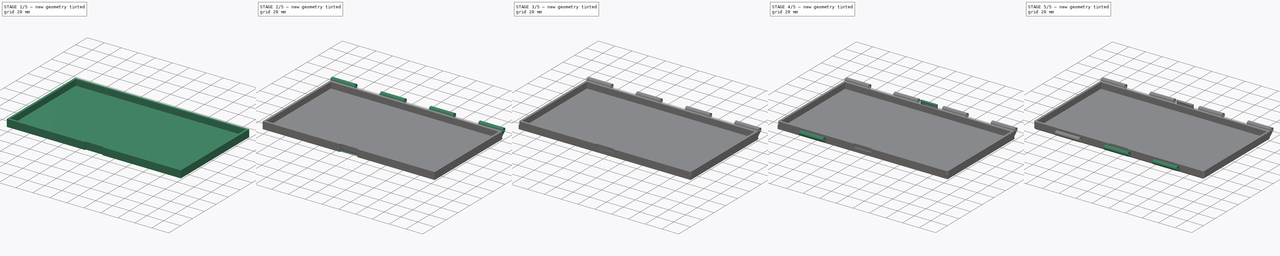
[diagram: build sequence overview — one tinted view per stage of 5, left to right]
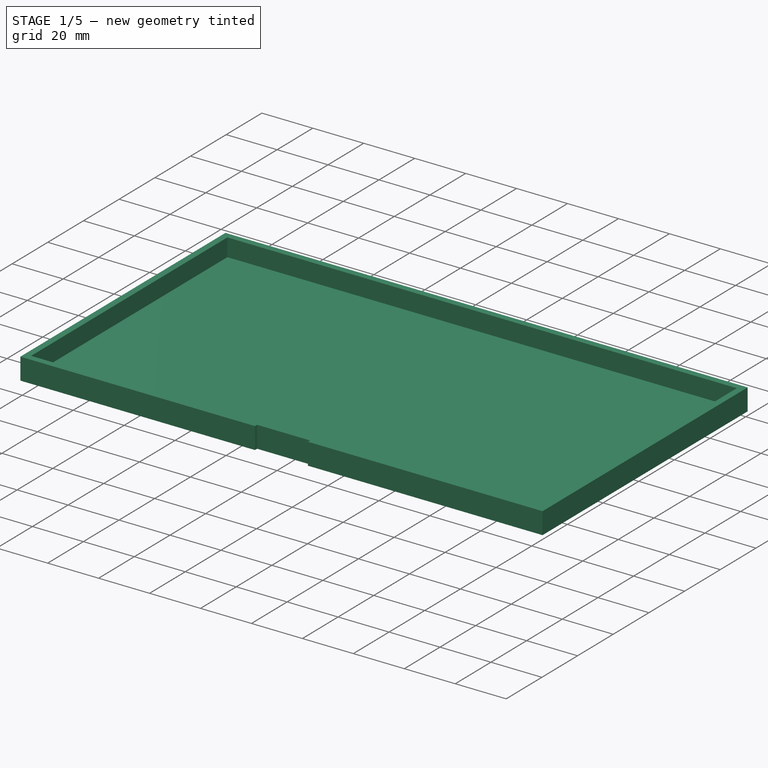
[diagram: stage 1 of 5 — iso view after this stage's code; geometry added in this stage tinted green]
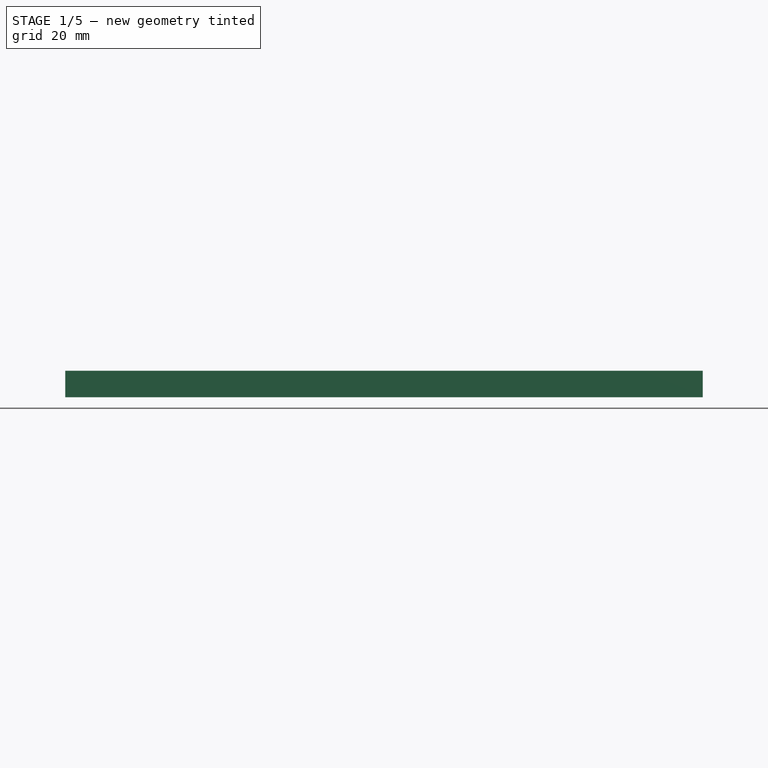
[diagram: stage 1 of 5 — front view after this stage's code; geometry added in this stage tinted green]
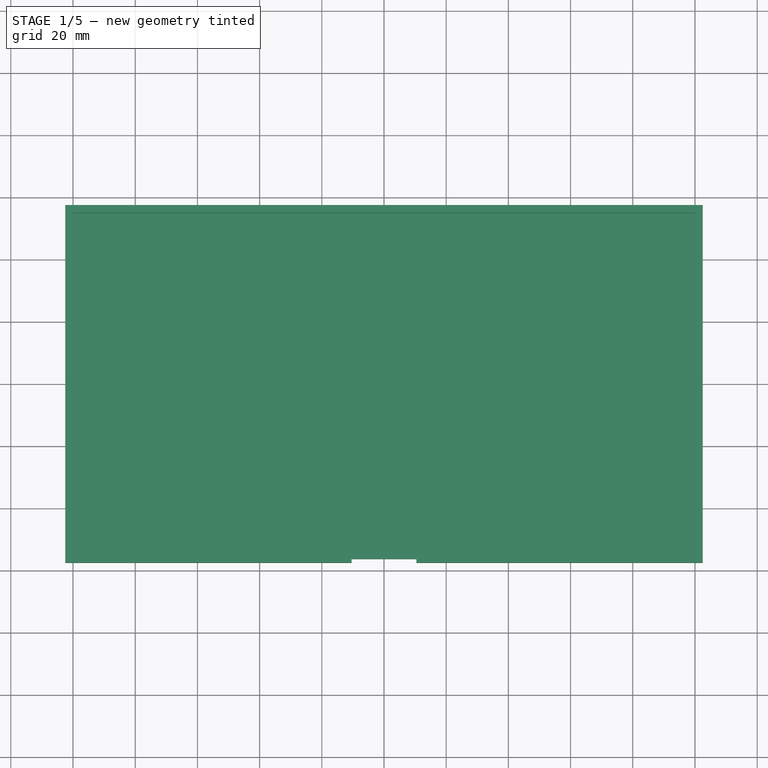
[diagram: stage 1 of 5 — top view after this stage's code; geometry added in this stage tinted green]
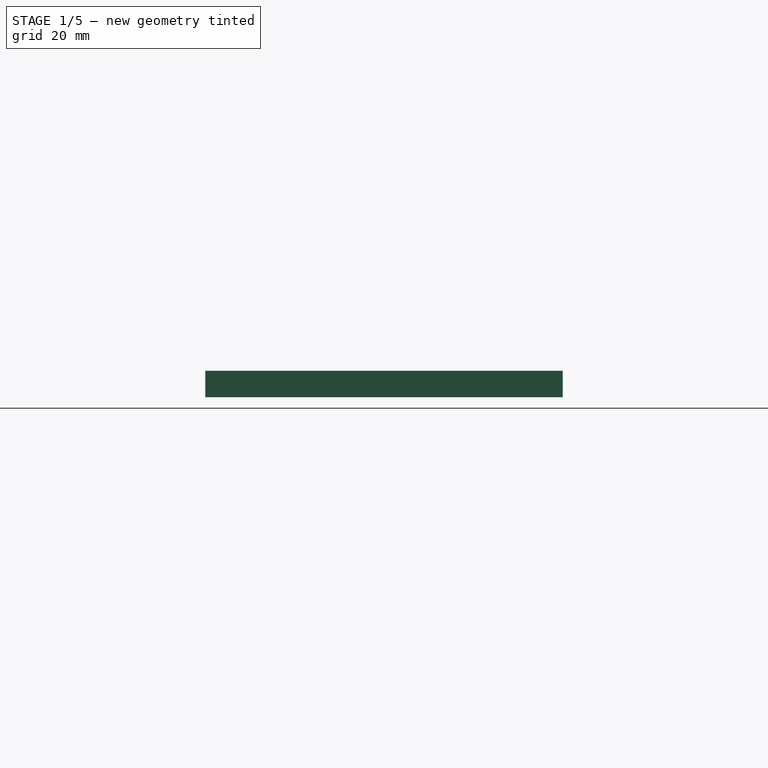
[diagram: stage 1 of 5 — right view after this stage's code; geometry added in this stage tinted green]
FCSTD DOCUMENT  (FreeCAD 0.19R24054 (Git))
Label: parametric box
License: All rights reserved
LicenseURL: http://en.wikipedia.org/wiki/All_rights_reserved
objects: Sketcher::SketchObject×10, PartDesign::Pad×8, PartDesign::CoordinateSystem×4, App::DocumentObjectGroup×2, App::Link×2, PartDesign::Pocket×2, PartDesign::LinearPattern×2, PartDesign::Line×2, PartDesign::Fillet×2, PartDesign::Chamfer×2, PartDesign::Body×2, Spreadsheet::Sheet×1, App::FeaturePython×1, App::Part×1
note: 48 computed .brp shape members not serialized (recipe doc carries the construction recipe); baked Part::Feature solids carry a one-line shape summary decoded from their .brp

FEATURE [Spreadsheet::Sheet] Spreadsheet  label="dim"
  cells = A1=width; B1(width)=200; C1=200; D1=width_plus_walls; E1(width_plus_walls)==width + 2 * wall; A2=depth; B2(depth)=110; C2=110; D2=depth_plus_walls; E2(depth_plus_walls)==depth + 2 * wall; A3=height_box; B3(height_box)=7; A4=height_cover; B4(height_cover)=3; A5=height_slack; B5(height_slack)=0.3; A6=bottom; B6(bottom)=1.5; A7=top; B7(top)=1.5; A8=wall; B8(wall)=2.5; A9=hinge_d; B9(hinge_d)=5; A10=hinge_hole; B10(hinge_hole)=2.5; D10=hinge_width; E10(hinge_width)==(width_plus_walls + hinge_spacing) / num_hinges - hinge_spacing; A11=hinge_spacing; B11(hinge_spacing)=0.5; D11=hinge_dist_bottom; E11(hinge_dist_bottom)==width_plus_walls - hinge_width; A12=num_hinges; B12(num_hinges)=7; C12=must be odd; D12=num_hinges_bottom; E12(num_hinges_bottom)==(num_hinges + 1) / 2; A13=lock_width; B13(lock_width)=20; D13=num_hinges_cover; E13(num_hinges_cover)==num_hinges - num_hinges_bottom; A14=lock_thickness; B14(lock_thickness)=1; D14=hinge_dist_cover; E14(hinge_dist_cover)==2 * (num_hinges_cover - 1) * (hinge_width + hinge_spacing); A15=lock_tab; B15(lock_tab)=1; A16=lock_width_slack; B16(lock_width_slack)=0.4; A17=lock_thick_slack; B17(lock_thick_slack)=0.2; A18=vert_fillet; B18(vert_fillet)=2; A19=hor_chamfer; B19(hor_chamfer)=1
FEATURE [Sketcher::SketchObject] Sketch
  FullyConstrained = true
  MapMode = 5
  Support = -> [XY_Plane]
  expr: Constraints[10] = <<dim>>.depth_plus_walls
  expr: Constraints[9] = <<dim>>.width_plus_walls
  sketch-geometry (4):
    g0: LineSegment StartX=-102.5 StartY=57.5 StartZ=0 EndX=102.5 EndY=57.5 EndZ=0
    g1: LineSegment StartX=102.5 StartY=57.5 StartZ=0 EndX=102.5 EndY=-57.5 EndZ=0
    g2: LineSegment StartX=102.5 StartY=-57.5 StartZ=0 EndX=-102.5 EndY=-57.5 EndZ=0
    g3: LineSegment StartX=-102.5 StartY=-57.5 StartZ=0 EndX=-102.5 EndY=57.5 EndZ=0
  constraints (11):
    c: Coincident(g0,g1)
    c: Coincident(g1,g2)
    c: Coincident(g2,g3)
    c: Coincident(g3,g0)
    c: Horizontal(g0)
    c: Horizontal(g2)
    c: Vertical(g1)
    c: Vertical(g3)
    c: Symmetric(g1,g0,g-1)
    c: DistanceX(g0,g0) = 205
    c: DistanceY(g1,g1) = 115
FEATURE [PartDesign::Pad] Pad
  Direction = (1,1,1)
  Length = 1.5
  Length2 = 100
  Profile = -> Sketch
  Refine = true
  Reversed = true
  Type = 0
  expr: Length = <<dim>>.bottom
FEATURE [Sketcher::SketchObject] Sketch001
  FullyConstrained = true
  MapMode = 5
  Support = -> [XY_Plane]
  expr: Constraints[21] = <<dim>>.wall
  expr: Constraints[20] = <<dim>>.wall
  expr: Constraints[10] = <<dim>>.depth_plus_walls
  expr: Constraints[9] = <<dim>>.width_plus_walls
  sketch-geometry (8):
    g0: LineSegment StartX=-102.5 StartY=57.5 StartZ=0 EndX=102.5 EndY=57.5 EndZ=0
    g1: LineSegment StartX=102.5 StartY=57.5 StartZ=0 EndX=102.5 EndY=-57.5 EndZ=0
    g2: LineSegment StartX=102.5 StartY=-57.5 StartZ=0 EndX=-102.5 EndY=-57.5 EndZ=0
    g3: LineSegment StartX=-102.5 StartY=-57.5 StartZ=0 EndX=-102.5 EndY=57.5 EndZ=0
    g4: LineSegment StartX=-100 StartY=55 StartZ=0 EndX=100 EndY=55 EndZ=0
    g5: LineSegment StartX=100 StartY=55 StartZ=0 EndX=100 EndY=-55 EndZ=0
    g6: LineSegment StartX=100 StartY=-55 StartZ=0 EndX=-100 EndY=-55 EndZ=0
    g7: LineSegment StartX=-100 StartY=-55 StartZ=0 EndX=-100 EndY=55 EndZ=0
  constraints (22):
    c: Coincident(g0,g1)
    c: Coincident(g1,g2)
    c: Coincident(g2,g3)
    c: Coincident(g3,g0)
    c: Horizontal(g0)
    c: Horizontal(g2)
    c: Vertical(g1)
    c: Vertical(g3)
    c: Symmetric(g1,g0,g-1)
    c: DistanceX(g0,g0) = 205
    c: DistanceY(g1,g1) = 115
    c: Coincident(g4,g5)
    c: Coincident(g5,g6)
    c: Coincident(g6,g7)
    c: Coincident(g7,g4)
    c: Horizontal(g4)
    c: Horizontal(g6)
    c: Vertical(g5)
    c: Vertical(g7)
    c: Symmetric(g5,g4,g-1)
    c: DistanceX(g4,g0) = 2.5
    c: DistanceY(g4,g0) = 2.5
FEATURE [PartDesign::Pad] Pad001
  BaseFeature = -> Pad
  Direction = (1,1,1)
  Length = 7
  Length2 = 100
  Profile = -> Sketch001
  Refine = true
  Type = 0
  expr: Length = <<dim>>.height_box
FEATURE [PartDesign::CoordinateSystem] LCS_Origin
  AttacherType = Attacher::AttachEngine3D
  MapMode = 2
  Support = -> [X_Axis002]
FEATURE [App::DocumentObjectGroup] Constraints
FEATURE [App::FeaturePython] Variables  # WARN: FeaturePython — macro-defined, semantics opaque (R4)
FEATURE [App::Link] bottom  label="bottom001"
  AssemblyType = Asm4EE
  AttachedBy = #LCS_1
  AttachedTo = Parent Assembly#LCS_Origin
  LinkedObject = -> Body
  expr: Placement = LCS_Origin.Placement * AttachmentOffset * LCS_1.Placement ^ -1
FEATURE [PartDesign::CoordinateSystem] LCS_1
  AttacherType = Attacher::AttachEngine3D
FEATURE [PartDesign::CoordinateSystem] LCS_2
  AttacherType = Attacher::AttachEngine3D
  MapMode = 7
  Placement = pos=(102.5,57.5,7) rot=(0,0.707107,0.707107;3.14159rad)
  Support = -> [Pad001]
FEATURE [PartDesign::CoordinateSystem] LCS_3
  AttacherType = Attacher::AttachEngine3D
  MapMode = 7
  Placement = pos=(102.5,-57.5,3) rot=(0,0.707107,0.707107;3.14159rad)
  Support = -> [Pad002]
FEATURE [App::Link] cover  label="cover001"
  AssemblyType = Asm4EE
  AttachedBy = #HoleAxis_2
  AttachedTo = bottom#HoleAxis_1
  AttachmentOffset = pos=(0,0,0) rot=(0,0,1;3.14159rad)
  LinkPlacement = pos=(-1.42e-14,-5.47416e-05,10.599) rot=(1,0,0;3.14161rad)
  LinkedObject = -> Body001
  Placement = pos=(-1.42e-14,-5.47416e-05,10.599) rot=(1,0,0;3.14161rad)
  expr: Placement = bottom.Placement * HoleAxis_1.Placement * AttachmentOffset * HoleAxis_2.Placement ^ -1
FEATURE [App::Part] Model
  Configuration = 0
  Group = -> [LCS_Origin,Constraints,Variables,bottom,cover]
  Origin = -> Origin002
  Type = Assembly4 Model
FEATURE [Sketcher::SketchObject] Sketch004
  FullyConstrained = true
  MapMode = 5
  Support = -> [XY_Plane]
  expr: Constraints[10] = <<dim>>.lock_thickness + <<dim>>.lock_thick_slack
  expr: Constraints[9] = <<dim>>.lock_width + 2 * <<dim>>.lock_width_slack
  expr: Constraints[7] = -<<dim>>.depth_plus_walls / 2
  sketch-geometry (4):
    g0: LineSegment StartX=-10.4 StartY=-57.5 StartZ=0 EndX=10.4 EndY=-57.5 EndZ=0
    g1: LineSegment StartX=10.4 StartY=-57.5 StartZ=0 EndX=10.4 EndY=-56.3 EndZ=0
    g2: LineSegment StartX=10.4 StartY=-56.3 StartZ=0 EndX=-10.4 EndY=-56.3 EndZ=0
    g3: LineSegment StartX=-10.4 StartY=-56.3 StartZ=0 EndX=-10.4 EndY=-57.5 EndZ=0
  constraints (11):
    c: Coincident(g0,g1)
    c: Coincident(g1,g2)
    c: Coincident(g2,g3)
    c: Coincident(g3,g0)
    c: Horizontal(g2)
    c: Vertical(g1)
    c: Vertical(g3)
    c: DistanceY(g0) = -57.5
    c: Symmetric(g0,g0,g-2)
    c: DistanceX(g0,g0) = 20.8
    c: DistanceY(g1,g1) = 1.2
FEATURE [PartDesign::Pocket] Pocket
  BaseFeature = -> Pad001
  Length = 5
  Length2 = 100
  Midplane = true
  Profile = -> Sketch004
  Refine = true
  Type = 1
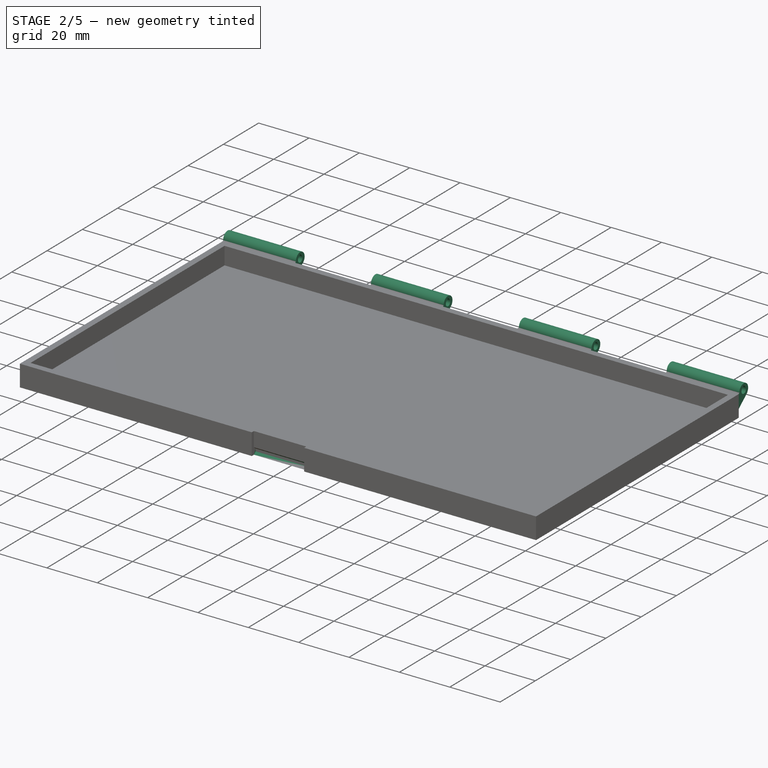
[diagram: stage 2 of 5 — iso view after this stage's code; geometry added in this stage tinted green]
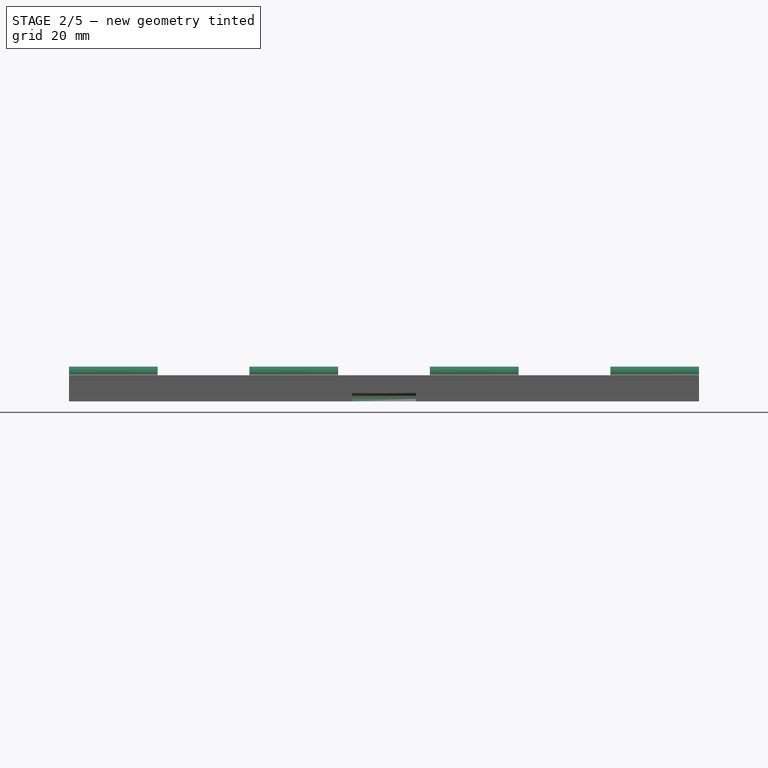
[diagram: stage 2 of 5 — front view after this stage's code; geometry added in this stage tinted green]
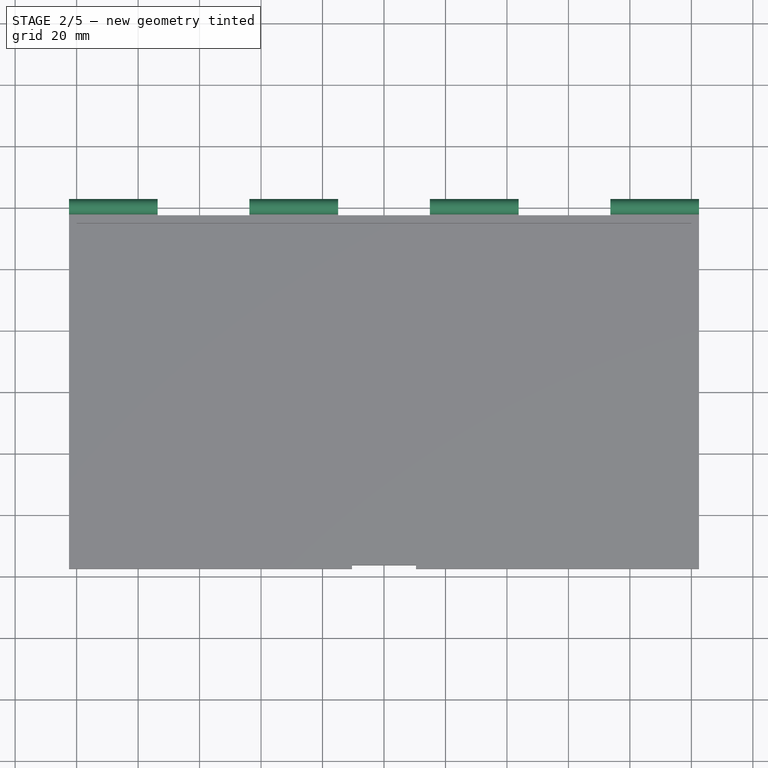
[diagram: stage 2 of 5 — top view after this stage's code; geometry added in this stage tinted green]
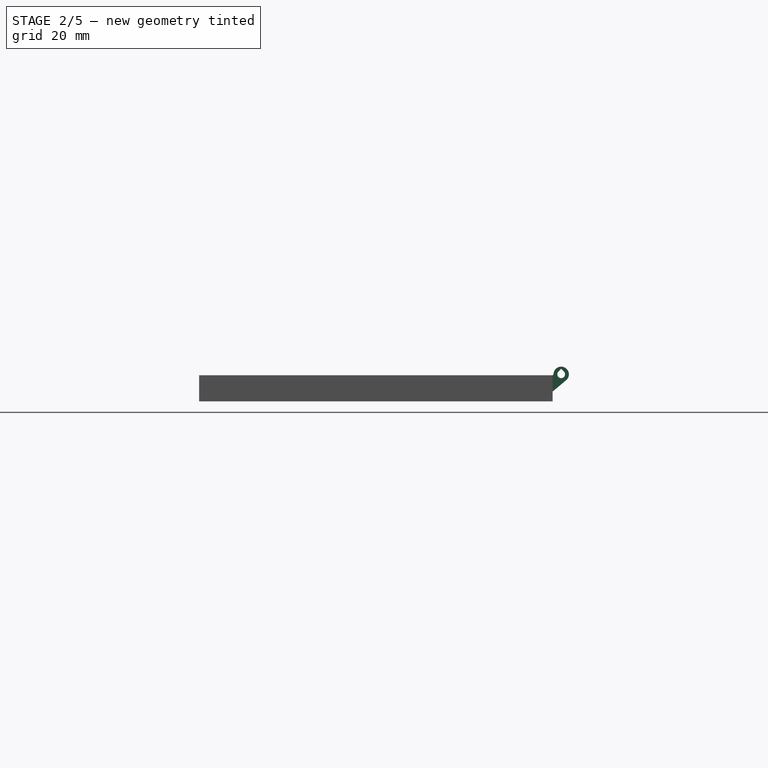
[diagram: stage 2 of 5 — right view after this stage's code; geometry added in this stage tinted green]
FEATURE [PartDesign::Body] Body001  label="cover"
  Group = -> [Sketch002,Pad003,Sketch003,Pad002,LCS_3,Sketch006,Pad005,Sketch007,Pad006,Sketch009,Pad008,LinearPattern001,HoleAxis_2,Fillet001,Chamfer001]
  Origin = -> Origin001
  Placement = pos=(0,133,0) rot=(0,0,1;0rad)
  Tip = -> Chamfer001
FEATURE [PartDesign::Pocket] Pocket001
  BaseFeature = -> Pocket
  Length = 20.8
  Length2 = 100
  Midplane = true
  Profile = -> Sketch005
  Refine = true
  Type = 0
  expr: Length = <<dim>>.lock_width + 2 * <<dim>>.lock_width_slack
FEATURE [PartDesign::Pad] Pad007
  BaseFeature = -> Pocket001
  Direction = (1,1,1)
  Length = 28.8571
  Length2 = 100
  Profile = -> Sketch008
  Refine = true
  Type = 0
  expr: Length = <<dim>>.hinge_width
FEATURE [PartDesign::LinearPattern] LinearPattern
  BaseFeature = -> Pad007
  Direction = -> X_Axis
  Length = 176.143
  Occurrences = 4
  Originals = -> [Pad007]
  Refine = true
  expr: Occurrences = <<dim>>.num_hinges_bottom
  expr: Length = Spreadsheet.hinge_dist_bottom
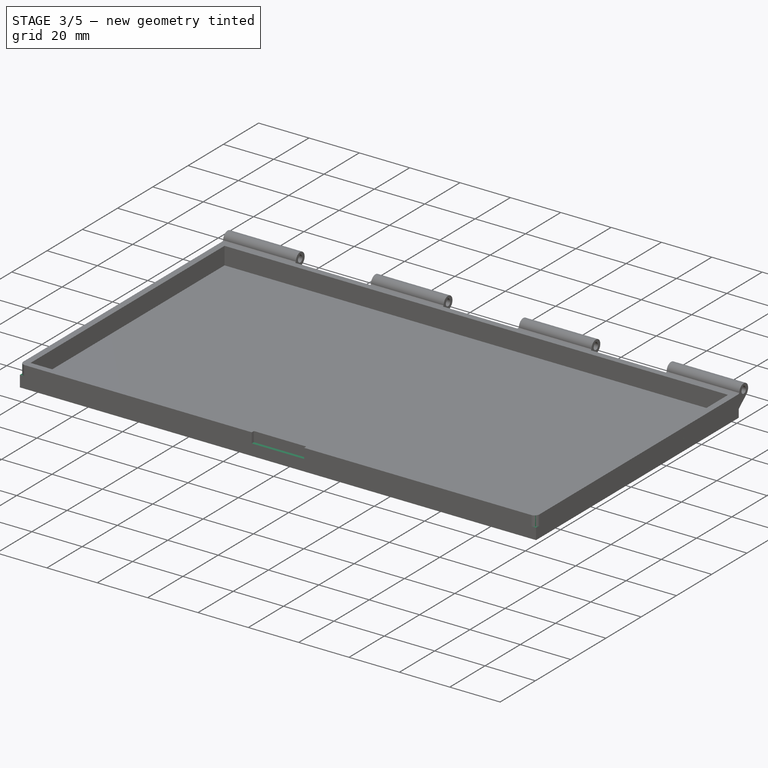
[diagram: stage 3 of 5 — iso view after this stage's code; geometry added in this stage tinted green]
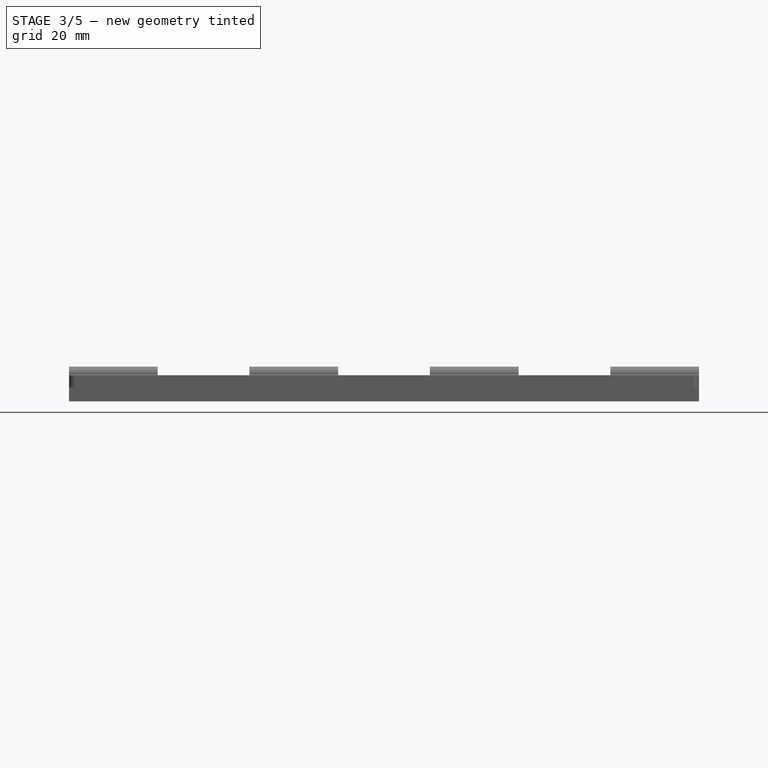
[diagram: stage 3 of 5 — front view after this stage's code; geometry added in this stage tinted green]
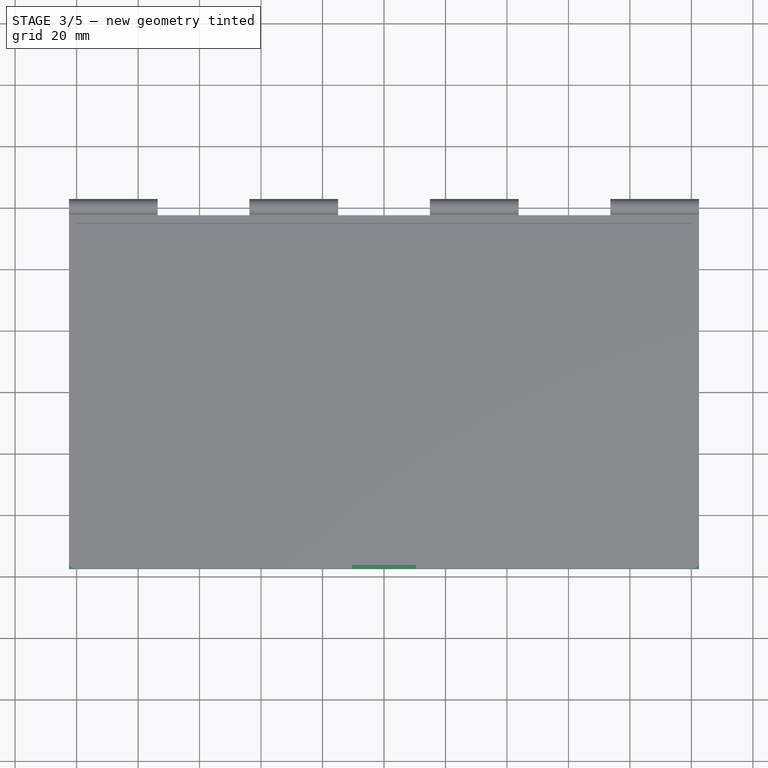
[diagram: stage 3 of 5 — top view after this stage's code; geometry added in this stage tinted green]
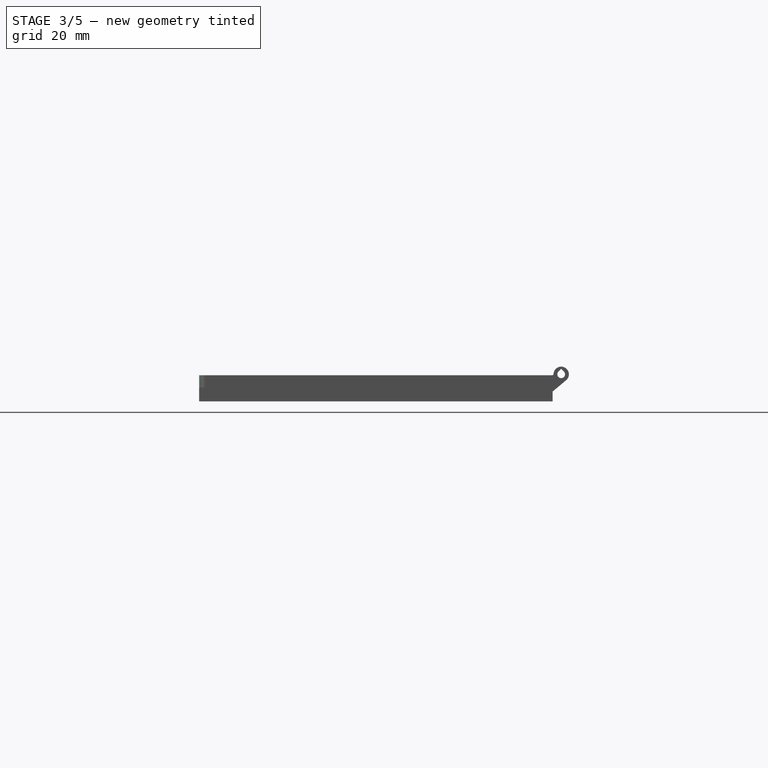
[diagram: stage 3 of 5 — right view after this stage's code; geometry added in this stage tinted green]
FEATURE [Sketcher::SketchObject] Sketch002
  FullyConstrained = true
  MapMode = 5
  Support = -> [XY_Plane001]
  expr: Constraints[9] = <<dim>>.width_plus_walls
  expr: Constraints[10] = <<dim>>.depth_plus_walls
  sketch-geometry (4):
    g0: LineSegment StartX=-102.5 StartY=57.5 StartZ=0 EndX=102.5 EndY=57.5 EndZ=0
    g1: LineSegment StartX=102.5 StartY=57.5 StartZ=0 EndX=102.5 EndY=-57.5 EndZ=0
    g2: LineSegment StartX=102.5 StartY=-57.5 StartZ=0 EndX=-102.5 EndY=-57.5 EndZ=0
    g3: LineSegment StartX=-102.5 StartY=-57.5 StartZ=0 EndX=-102.5 EndY=57.5 EndZ=0
  constraints (11):
    c: Coincident(g0,g1)
    c: Coincident(g1,g2)
    c: Coincident(g2,g3)
    c: Coincident(g3,g0)
    c: Horizontal(g0)
    c: Horizontal(g2)
    c: Vertical(g1)
    c: Vertical(g3)
    c: Symmetric(g1,g0,g-1)
    c: DistanceX(g0,g0) = 205
    c: DistanceY(g1,g1) = 115
FEATURE [Sketcher::SketchObject] Sketch003
  FullyConstrained = true
  MapMode = 5
  Support = -> [XY_Plane001]
  expr: Constraints[9] = <<dim>>.width_plus_walls
  expr: Constraints[10] = <<dim>>.depth_plus_walls
  expr: Constraints[20] = <<dim>>.wall
  expr: Constraints[21] = <<dim>>.wall
  sketch-geometry (8):
    g0: LineSegment StartX=-102.5 StartY=57.5 StartZ=0 EndX=102.5 EndY=57.5 EndZ=0
    g1: LineSegment StartX=102.5 StartY=57.5 StartZ=0 EndX=102.5 EndY=-57.5 EndZ=0
    g2: LineSegment StartX=102.5 StartY=-57.5 StartZ=0 EndX=-102.5 EndY=-57.5 EndZ=0
    g3: LineSegment StartX=-102.5 StartY=-57.5 StartZ=0 EndX=-102.5 EndY=57.5 EndZ=0
    g4: LineSegment StartX=-100 StartY=55 StartZ=0 EndX=100 EndY=55 EndZ=0
    g5: LineSegment StartX=100 StartY=55 StartZ=0 EndX=100 EndY=-55 EndZ=0
    g6: LineSegment StartX=100 StartY=-55 StartZ=0 EndX=-100 EndY=-55 EndZ=0
    g7: LineSegment StartX=-100 StartY=-55 StartZ=0 EndX=-100 EndY=55 EndZ=0
  constraints (22):
    c: Coincident(g0,g1)
    c: Coincident(g1,g2)
    c: Coincident(g2,g3)
    c: Coincident(g3,g0)
    c: Horizontal(g0)
    c: Horizontal(g2)
    c: Vertical(g1)
    c: Vertical(g3)
    c: Symmetric(g1,g0,g-1)
    c: DistanceX(g0,g0) = 205
    c: DistanceY(g1,g1) = 115
    c: Coincident(g4,g5)
    c: Coincident(g5,g6)
    c: Coincident(g6,g7)
    c: Coincident(g7,g4)
    c: Horizontal(g4)
    c: Horizontal(g6)
    c: Vertical(g5)
    c: Vertical(g7)
    c: Symmetric(g5,g4,g-1)
    c: DistanceX(g4,g0) = 2.5
    c: DistanceY(g4,g0) = 2.5
FEATURE [PartDesign::Pad] Pad003
  Direction = (1,1,1)
  Length = 1.5
  Length2 = 100
  Profile = -> Sketch002
  Refine = true
  Reversed = true
  Type = 0
  expr: Length = <<dim>>.bottom
FEATURE [PartDesign::Pad] Pad002
  BaseFeature = -> Pad003
  Direction = (1,1,1)
  Length = 3
  Length2 = 100
  Profile = -> Sketch003
  Refine = true
  Type = 0
  expr: Length = <<dim>>.height_cover
FEATURE [PartDesign::Line] HoleAxis_1
  AttacherType = Attacher::AttachEngineLine
  AttachmentOffset = pos=(0,0,0.5) rot=(0,0,1;0rad)
  Length = 2.82656
  MapMode = 19
  Placement = pos=(-73.1429,60.3,7.3) rot=(-0.678598,0.281087,-0.678598;2.59356rad)
  ResizeMode = 1
  Support = -> [Pad007]
  expr: .AttachmentOffset.Base.z = <<dim>>.hinge_spacing
FEATURE [PartDesign::Fillet] Fillet
  Base = -> LinearPattern [Edge43,Edge47,Edge23,Edge19]
  BaseFeature = -> LinearPattern
  Radius = 2
  Refine = true
  SupportTransform = false
  expr: Radius = <<dim>>.vert_fillet
FEATURE [PartDesign::Chamfer] Chamfer
  Angle = 45
  Base = -> Fillet [Edge68]
  BaseFeature = -> Fillet
  ChamferType = 0
  FlipDirection = false
  Size = 1
  Size2 = 1
  SupportTransform = false
  expr: Size = <<dim>>.hor_chamfer
FEATURE [PartDesign::Body] Body  label="bottom"
  Group = -> [Sketch,Pad,Sketch001,Pad001,LCS_1,LCS_2,Sketch004,Pocket,Sketch005,Sketch008,Pocket001,Pad007,LinearPattern,HoleAxis_1,Fillet,Chamfer]
  Origin = -> Origin
  Tip = -> Chamfer
FEATURE [App::DocumentObjectGroup] Parts
  Group = -> [Body,Body001]
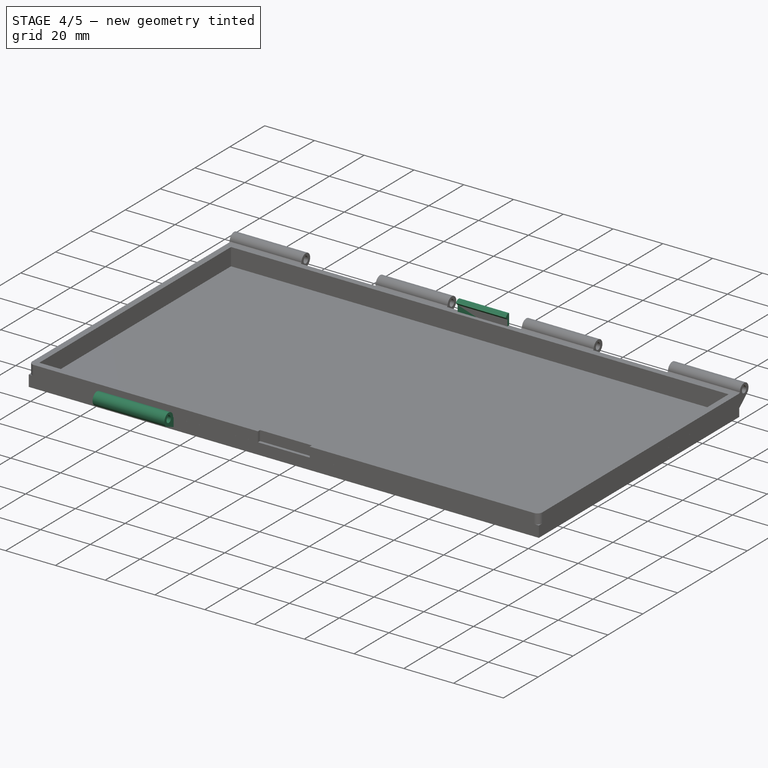
[diagram: stage 4 of 5 — iso view after this stage's code; geometry added in this stage tinted green]
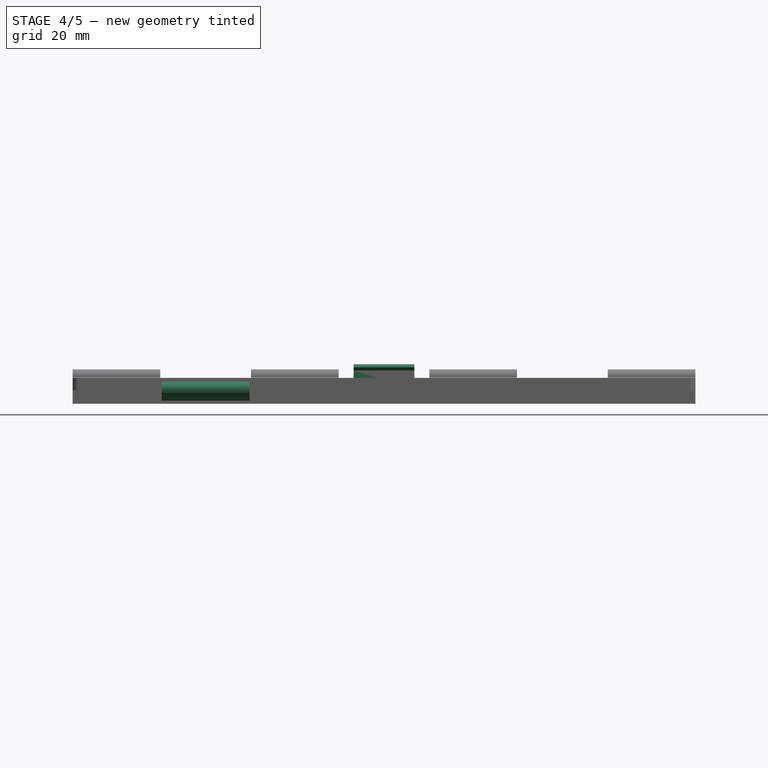
[diagram: stage 4 of 5 — front view after this stage's code; geometry added in this stage tinted green]
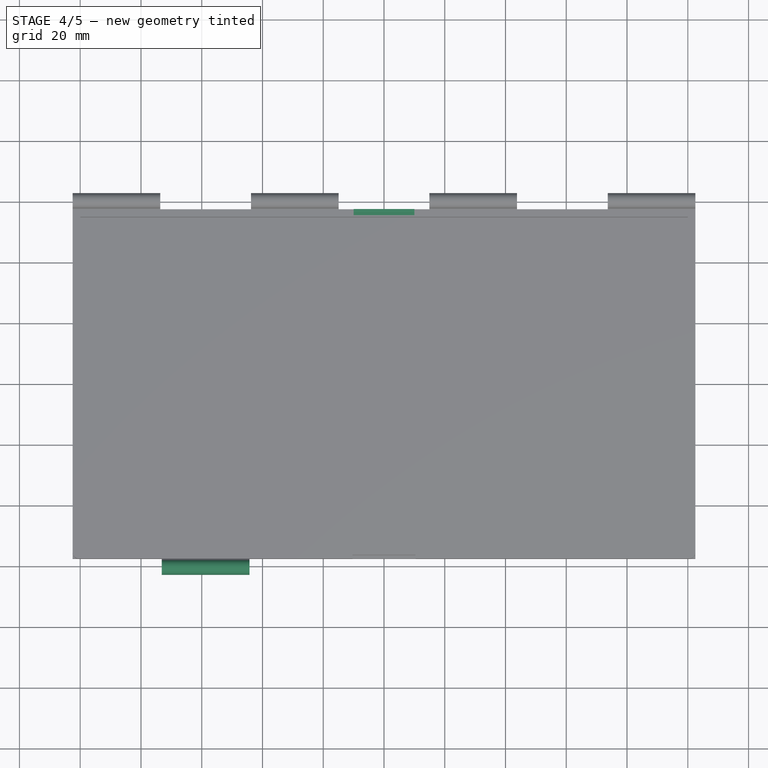
[diagram: stage 4 of 5 — top view after this stage's code; geometry added in this stage tinted green]
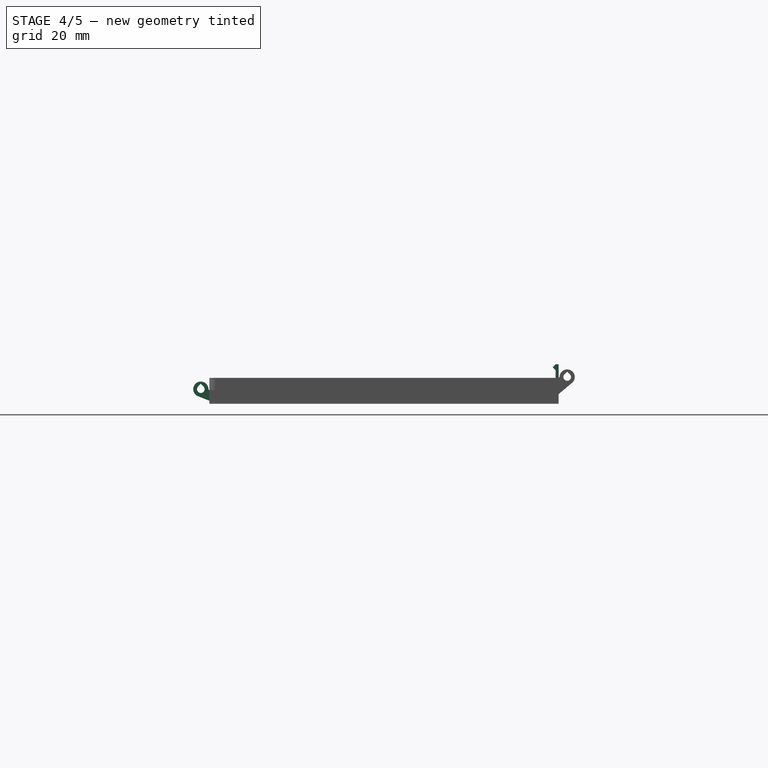
[diagram: stage 4 of 5 — right view after this stage's code; geometry added in this stage tinted green]
FEATURE [Sketcher::SketchObject] Sketch005
  FullyConstrained = true
  MapMode = 5
  Placement = pos=(0,0,0) rot=(0.57735,0.57735,0.57735;2.0944rad)
  Support = -> [YZ_Plane]
  expr: Constraints[6] = -<<dim>>.depth_plus_walls / 2 + <<dim>>.lock_thickness + <<dim>>.lock_thick_slack
  expr: Constraints[8] = <<dim>>.lock_tab
  expr: Constraints[10] = <<dim>>.lock_tab
  expr: Constraints[11] = -<<dim>>.bottom
  sketch-geometry (4):
    g0: LineSegment StartX=-56.3 StartY=-1.5 StartZ=0 EndX=-55.3 EndY=-0.6609 EndZ=0
    g1: LineSegment StartX=-55.3 StartY=-0.6609 StartZ=0 EndX=-55.3 EndY=0.3391 EndZ=0
    g2: LineSegment StartX=-55.3 StartY=0.3391 StartZ=0 EndX=-56.3 EndY=1.1782 EndZ=0
    g3: LineSegment StartX=-56.3 StartY=1.1782 StartZ=0 EndX=-56.3 EndY=-1.5 EndZ=0
  constraints (12):
    c: Coincident(g1,g0)
    c: Vertical(g1)
    c: Coincident(g2,g1)
    c: Coincident(g3,g2)
    c: Vertical(g3)
    c: Coincident(g3,g0)
    c: DistanceX(g0) = -56.3
    c: Angle(g0) = 0.698132
    c: DistanceY(g1,g1) = 1
    c: Angle(g2) = 2.44346
    c: DistanceX(g0,g0) = 1
    c: DistanceY(g0) = -1.5
FEATURE [Sketcher::SketchObject] Sketch006
  AttachmentOffset = pos=(0,0,3) rot=(0,0,1;0rad)
  FullyConstrained = true
  MapMode = 5
  Placement = pos=(0,0,3) rot=(0,0,1;0rad)
  Support = -> [XY_Plane001]
  expr: Constraints[10] = <<dim>>.lock_thickness
  expr: Constraints[9] = <<dim>>.depth_plus_walls / 2
  expr: Constraints[8] = <<dim>>.lock_width
  expr: .AttachmentOffset.Base.z = <<dim>>.height_cover
  sketch-geometry (4):
    g0: LineSegment StartX=-10 StartY=57.5 StartZ=0 EndX=10 EndY=57.5 EndZ=0
    g1: LineSegment StartX=10 StartY=57.5 StartZ=0 EndX=10 EndY=56.5 EndZ=0
    g2: LineSegment StartX=10 StartY=56.5 StartZ=0 EndX=-10 EndY=56.5 EndZ=0
    g3: LineSegment StartX=-10 StartY=56.5 StartZ=0 EndX=-10 EndY=57.5 EndZ=0
  constraints (11):
    c: Coincident(g0,g1)
    c: Coincident(g1,g2)
    c: Coincident(g2,g3)
    c: Coincident(g3,g0)
    c: Horizontal(g2)
    c: Vertical(g1)
    c: Vertical(g3)
    c: Symmetric(g0,g0,g-2)
    c: DistanceX(g0,g0) = 20
    c: DistanceY(g0) = 57.5
    c: DistanceY(g1,g1) = 1
FEATURE [PartDesign::Pad] Pad005
  BaseFeature = -> Pad002
  Direction = (1,1,1)
  Length = 8.5
  Length2 = 100
  Profile = -> Sketch006
  Refine = true
  Type = 0
  expr: Length = <<dim>>.height_box + <<dim>>.bottom
FEATURE [Sketcher::SketchObject] Sketch007
  FullyConstrained = true
  MapMode = 5
  Placement = pos=(0,0,0) rot=(0.57735,0.57735,0.57735;2.0944rad)
  Support = -> [YZ_Plane001]
  expr: Constraints[2] = <<dim>>.lock_tab
  expr: Constraints[1] = <<dim>>.depth_plus_walls / 2 - <<dim>>.lock_thickness
  expr: Constraints[0] = <<dim>>.height_cover + <<dim>>.height_box + <<dim>>.bottom
  sketch-geometry (3):
    g0: LineSegment StartX=56.5 StartY=11.5 StartZ=0 EndX=55.5 EndY=10.5 EndZ=0
    g1: LineSegment StartX=55.5 StartY=10.5 StartZ=0 EndX=56.5 EndY=9.5 EndZ=0
    g2: LineSegment StartX=56.5 StartY=9.5 StartZ=0 EndX=56.5 EndY=11.5 EndZ=0
  constraints (9):
    c: DistanceY(g0) = 11.5
    c: DistanceX(g0) = 56.5
    c: DistanceX(g0,g0) = 1
    c: Angle(g0) = -2.35619
    c: Coincident(g1,g0)
    c: Coincident(g2,g1)
    c: Coincident(g2,g0)
    c: Vertical(g2)
    c: Equal(g1,g0)
FEATURE [PartDesign::Pad] Pad006
  BaseFeature = -> Pad005
  Direction = (1,1,1)
  Length = 20
  Length2 = 100
  Midplane = true
  Profile = -> Sketch007
  Refine = true
  Type = 0
  expr: Length = <<dim>>.lock_width
FEATURE [Sketcher::SketchObject] Sketch008
  AttachmentOffset = pos=(0,0,-102.5) rot=(0,0,1;0rad)
  FullyConstrained = true
  MapMode = 5
  Placement = pos=(-102.5,2.28e-14,-2.28e-14) rot=(0.57735,0.57735,0.57735;2.0944rad)
  Support = -> [YZ_Plane]
  expr: Constraints[26] = <<dim>>.hinge_hole
  expr: Constraints[15] = <<dim>>.height_slack
  expr: Constraints[12] = <<dim>>.hinge_d
  expr: Constraints[11] = <<dim>>.height_slack
  expr: Constraints[10] = <<dim>>.height_box
  expr: Constraints[9] = <<dim>>.depth_plus_walls
  expr: .AttachmentOffset.Base.z = -<<dim>>.width_plus_walls / 2
  sketch-geometry (14):
    g0: Circle CenterX=60.3 CenterY=7.3 CenterZ=0 NormalX=0 NormalY=0 NormalZ=1 AngleXU=0 Radius=2.5
    g1: LineSegment StartX=-57.5 StartY=7 StartZ=0 EndX=57.5 EndY=7 EndZ=0
    g2: LineSegment StartX=57.5 StartY=7 StartZ=0 EndX=57.5 EndY=0 EndZ=0
    g3: LineSegment StartX=57.5 StartY=0 StartZ=0 EndX=-57.5 EndY=0 EndZ=0
    g4: LineSegment StartX=-57.5 StartY=0 StartZ=0 EndX=-57.5 EndY=7 EndZ=0
    g5: GeomPoint X=57.8 Y=7.3 Z=0
    g6: LineSegment StartX=57.5 StartY=7 StartZ=0 EndX=57.8 EndY=7.3 EndZ=0
    g7: LineSegment StartX=61.907 StartY=5.38489 StartZ=0 EndX=57.5 EndY=1.687 EndZ=0
    g8: ArcOfCircle CenterX=60.3 CenterY=7.3 CenterZ=0 NormalX=0 NormalY=0 NormalZ=1 AngleXU=0 Radius=2.5 StartAngle=5.41052 EndAngle=9.42478
    g9: LineSegment StartX=57.5 StartY=7 StartZ=0 EndX=57.5 EndY=1.687 EndZ=0
    g10: Circle CenterX=60.3 CenterY=7.3 CenterZ=0 NormalX=0 NormalY=0 NormalZ=1 AngleXU=0 Radius=1.25
    g11: LineSegment StartX=59.4161 StartY=8.18388 StartZ=0 EndX=60.3 EndY=9.06777 EndZ=0
    g12: LineSegment StartX=60.3 StartY=9.06777 StartZ=0 EndX=61.1839 EndY=8.18389 EndZ=0
    g13: ArcOfCircle CenterX=60.3 CenterY=7.3 CenterZ=0 NormalX=0 NormalY=0 NormalZ=1 AngleXU=0 Radius=1.25 StartAngle=2.3562 EndAngle=7.06859
  constraints (36):
    c: Coincident(g1,g2)
    c: Coincident(g2,g3)
    c: Coincident(g3,g4)
    c: Coincident(g4,g1)
    c: Horizontal(g3)
    c: Vertical(g2)
    c: Vertical(g4)
    c: PointOnObject(g2,g-1)
    c: Symmetric(g1,g1,g-2)
    c: DistanceX(g1,g1) = 115
    c: DistanceY(g2,g2) = 7
    c: DistanceY(g1,g0) = 0.3
    c: Diameter(g0) = 5
    c: PointOnObject(g5,g0)
    c: Horizontal(g5,g0)
    c: DistanceX(g1,g5) = 0.3
    c: Coincident(g6,g1)
    c: Coincident(g6,g5)
    c: PointOnObject(g7,g2)
    c: Angle(g7) = -2.44346
    c: Coincident(g8,g0)
    c: Coincident(g8,g6)
    c: Coincident(g9,g6)
    c: Coincident(g9,g7)
    c: Tangent(g8,g7) = 1.5708
    c: Coincident(g10,g8)
    c: Diameter(g10) = 2.5
    c: PointOnObject(g11,g10)
    c: Tangent(g11,g10)
    c: Coincident(g12,g11)
    c: Tangent(g12,g10)
    c: Vertical(g8,g11)
    c: Coincident(g13,g8)
    c: Coincident(g13,g11)
    c: Coincident(g13,g12)
    c: Perpendicular(g12,g11)
FEATURE [Sketcher::SketchObject] Sketch009
  AttachmentOffset = pos=(0,0,-73.1429) rot=(0,0,1;0rad)
  FullyConstrained = true
  MapMode = 5
  Placement = pos=(-73.1429,1.62e-14,-1.62e-14) rot=(0.57735,0.57735,0.57735;2.0944rad)
  Support = -> [YZ_Plane001]
  expr: Constraints[26] = <<dim>>.top - <<dim>>.hor_chamfer - 0.01
  expr: Constraints[16] = <<dim>>.height_slack
  expr: Constraints[15] = <<dim>>.hinge_hole
  expr: Constraints[10] = <<dim>>.height_cover
  expr: Constraints[17] = <<dim>>.height_slack
  expr: Constraints[9] = <<dim>>.depth_plus_walls
  expr: Constraints[13] = <<dim>>.hinge_d
  expr: .AttachmentOffset.Base.z = -<<dim>>.width_plus_walls / 2 + <<dim>>.hinge_width + <<dim>>.hinge_spacing
  sketch-geometry (14):
    g0: LineSegment StartX=57.5 StartY=0 StartZ=0 EndX=-57.5 EndY=0 EndZ=0
    g1: LineSegment StartX=-57.5 StartY=0 StartZ=0 EndX=-57.5 EndY=3 EndZ=0
    g2: LineSegment StartX=-57.5 StartY=3 StartZ=0 EndX=57.5 EndY=3 EndZ=0
    g3: LineSegment StartX=57.5 StartY=3 StartZ=0 EndX=57.5 EndY=0 EndZ=0
    g4: Circle CenterX=-60.3 CenterY=3.3 CenterZ=0 NormalX=0 NormalY=0 NormalZ=1 AngleXU=0 Radius=2.5
    g5: GeomPoint X=-57.8 Y=3.3 Z=0
    g6: Circle CenterX=-60.3 CenterY=3.3 CenterZ=0 NormalX=0 NormalY=0 NormalZ=1 AngleXU=0 Radius=1.25
    g7: LineSegment StartX=-57.5 StartY=3 StartZ=0 EndX=-57.8 EndY=3.3 EndZ=0
    g8: LineSegment StartX=-57.5 StartY=3 StartZ=0 EndX=-57.5 EndY=-0.49 EndZ=0
    g9: LineSegment StartX=-57.5 StartY=-0.49 StartZ=0 EndX=-61.2163 EndY=0.973974 EndZ=0
    g10: ArcOfCircle CenterX=-60.3 CenterY=3.3 CenterZ=0 NormalX=0 NormalY=0 NormalZ=1 AngleXU=0 Radius=2.5 StartAngle=0 EndAngle=4.33712
    g11: LineSegment StartX=-61.1839 StartY=4.18389 StartZ=0 EndX=-60.3 EndY=5.06777 EndZ=0
    g12: LineSegment StartX=-60.3 StartY=5.06777 StartZ=0 EndX=-59.4161 EndY=4.18387 EndZ=0
    g13: ArcOfCircle CenterX=-60.3 CenterY=3.3 CenterZ=0 NormalX=0 NormalY=0 NormalZ=1 AngleXU=0 Radius=1.25 StartAngle=2.35619 EndAngle=7.06857
  constraints (36):
    c: Coincident(g0,g1)
    c: Coincident(g1,g2)
    c: Coincident(g2,g3)
    c: Coincident(g3,g0)
    c: Horizontal(g0)
    c: Vertical(g1)
    c: Vertical(g3)
    c: PointOnObject(g0,g-1)
    c: Symmetric(g2,g1,g-2)
    c: DistanceX(g2,g2) = 115
    c: DistanceY(g1,g1) = 3
    c: PointOnObject(g5,g4)
    c: Horizontal(g5,g4)
    c: Diameter(g4) = 5
    c: Coincident(g6,g4)
    c: Diameter(g6) = 2.5
    c: DistanceX(g5,g1) = 0.3
    c: DistanceY(g1,g5) = 0.3
    c: Coincident(g7,g1)
    c: Coincident(g7,g5)
    c: Coincident(g8,g7)
    c: Vertical(g8)
    c: Coincident(g9,g8)
    c: Coincident(g10,g6)
    c: Coincident(g10,g7)
    c: Tangent(g10,g9) = 1.5708
    c: DistanceY(g8,g0) = 0.49
    c: PointOnObject(g11,g6)
    c: Tangent(g11,g6)
    c: Coincident(g12,g11)
    c: Tangent(g12,g6)
    c: Coincident(g13,g10)
    c: Coincident(g13,g11)
    c: Coincident(g13,g12)
    c: Perpendicular(g12,g11)
    c: Vertical(g11,g10)
FEATURE [PartDesign::Pad] Pad008
  BaseFeature = -> Pad006
  Direction = (1,1,1)
  Length = 28.8571
  Length2 = 100
  Profile = -> Sketch009
  Refine = true
  Type = 0
  expr: Length = <<dim>>.hinge_width
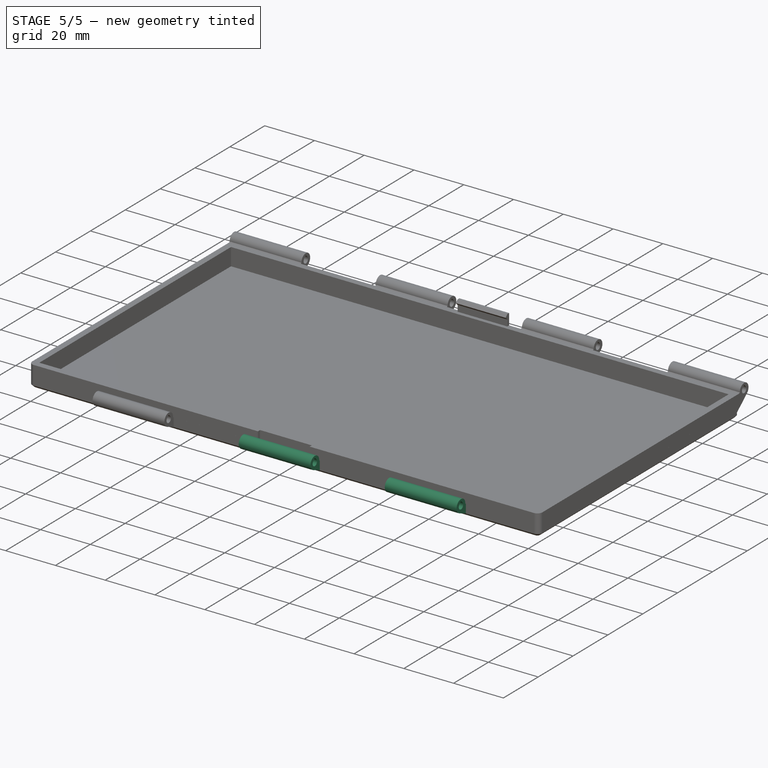
[diagram: stage 5 of 5 — iso view after this stage's code; geometry added in this stage tinted green]
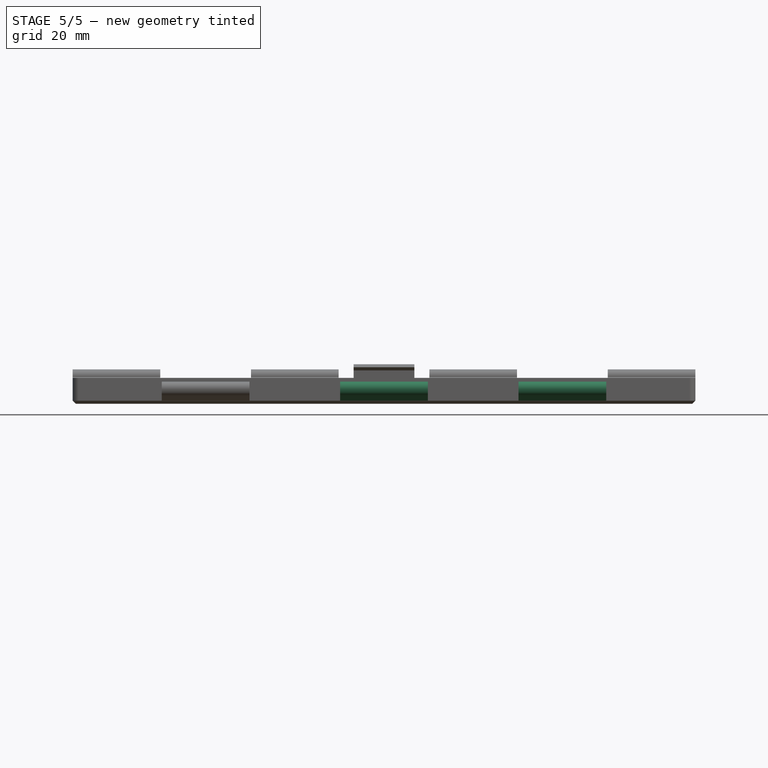
[diagram: stage 5 of 5 — front view after this stage's code; geometry added in this stage tinted green]
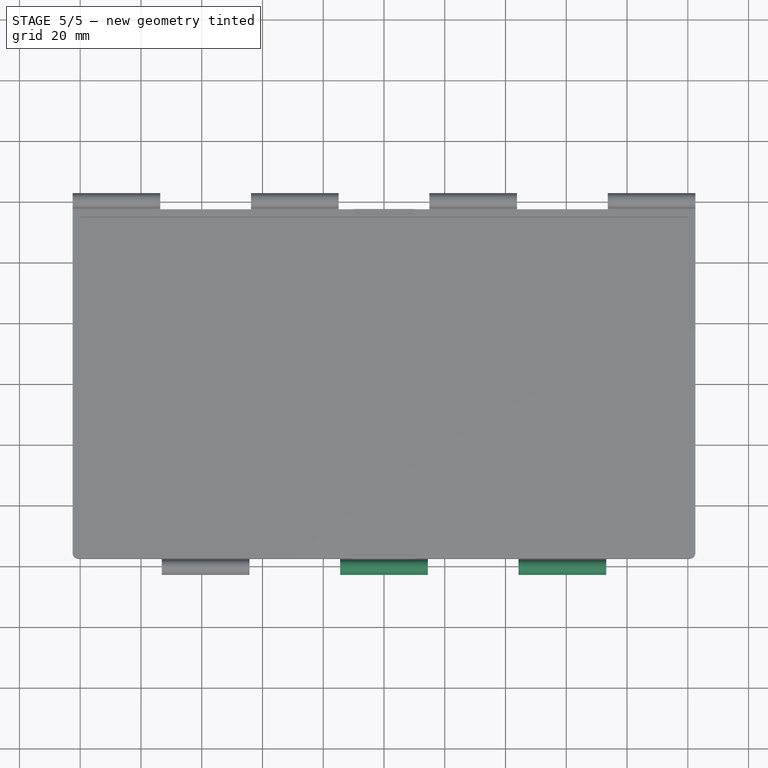
[diagram: stage 5 of 5 — top view after this stage's code; geometry added in this stage tinted green]
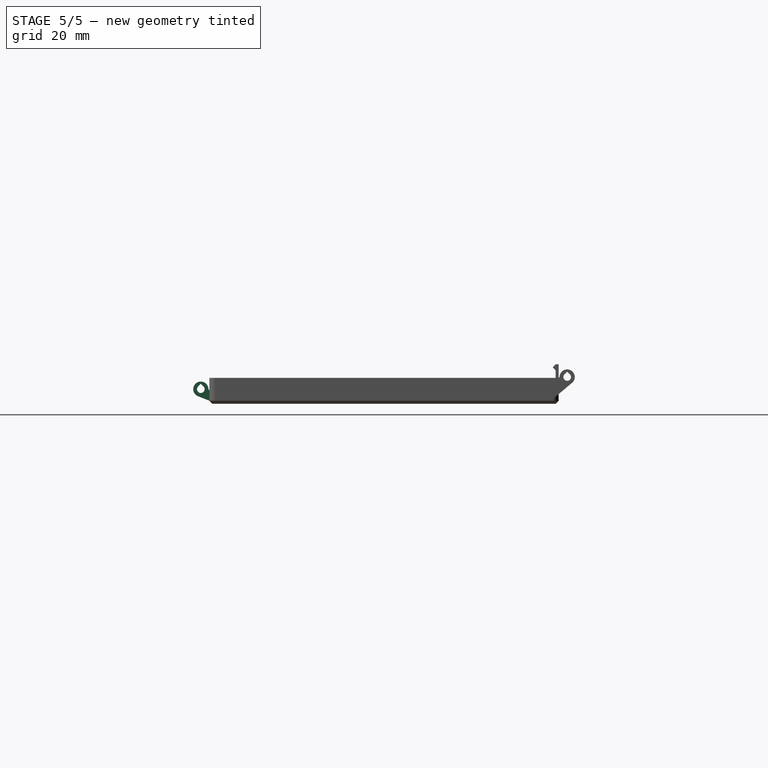
[diagram: stage 5 of 5 — right view after this stage's code; geometry added in this stage tinted green]
FEATURE [PartDesign::LinearPattern] LinearPattern001
  BaseFeature = -> Pad008
  Direction = -> X_Axis001
  Length = 117.429
  Occurrences = 3
  Originals = -> [Pad008]
  Refine = true
  expr: Occurrences = <<dim>>.num_hinges_cover
  expr: Length = <<dim>>.hinge_dist_cover
FEATURE [PartDesign::Line] HoleAxis_2
  AttacherType = Attacher::AttachEngineLine
  Length = 2.82656
  MapMode = 19
  Placement = pos=(-73.1429,-60.3,3.3) rot=(-0.678599,0.281081,-0.678599;2.59357rad)
  ResizeMode = 1
  Support = -> [Pad008]
FEATURE [PartDesign::Fillet] Fillet001
  Base = -> LinearPattern001 [Edge32,Edge42,Edge20,Edge19]
  BaseFeature = -> LinearPattern001
  Radius = 2
  Refine = true
  SupportTransform = false
  expr: Radius = <<dim>>.vert_fillet
FEATURE [PartDesign::Chamfer] Chamfer001
  Angle = 45
  Base = -> Fillet001 [Face20]
  BaseFeature = -> Fillet001
  ChamferType = 0
  FlipDirection = false
  Refine = true
  Size = 1
  Size2 = 1
  SupportTransform = false
  expr: Size = <<dim>>.hor_chamfer
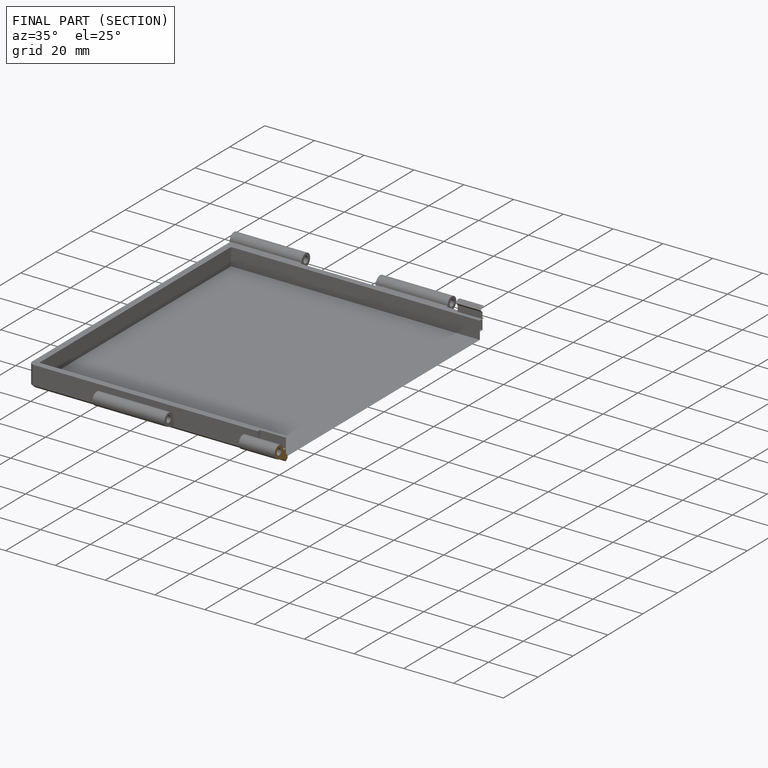
[diagram: finished part — half-section view (interior)]
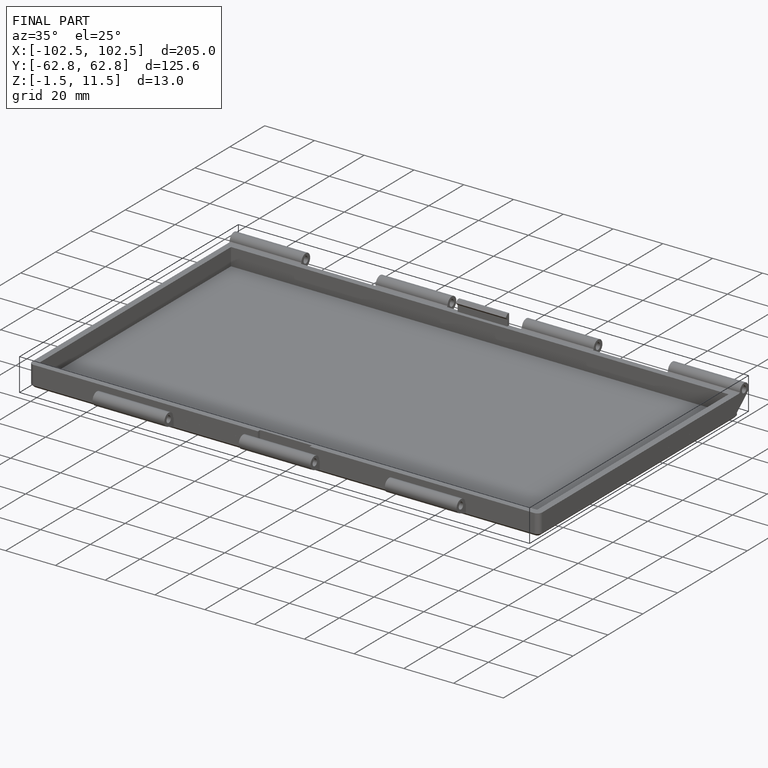
[diagram: finished part — iso view with bounding-box wireframe]
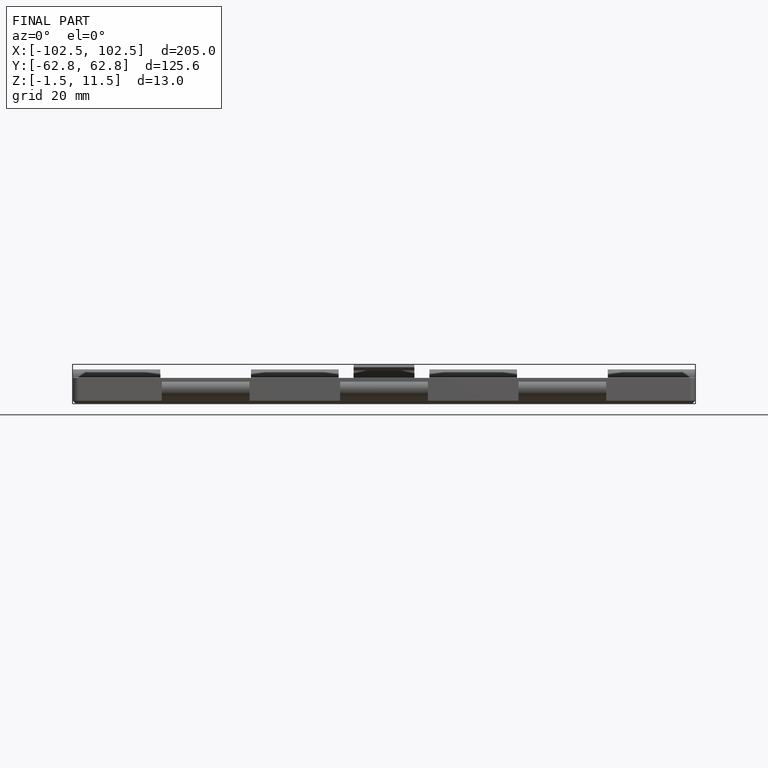
[diagram: finished part — front view with bounding-box wireframe]
